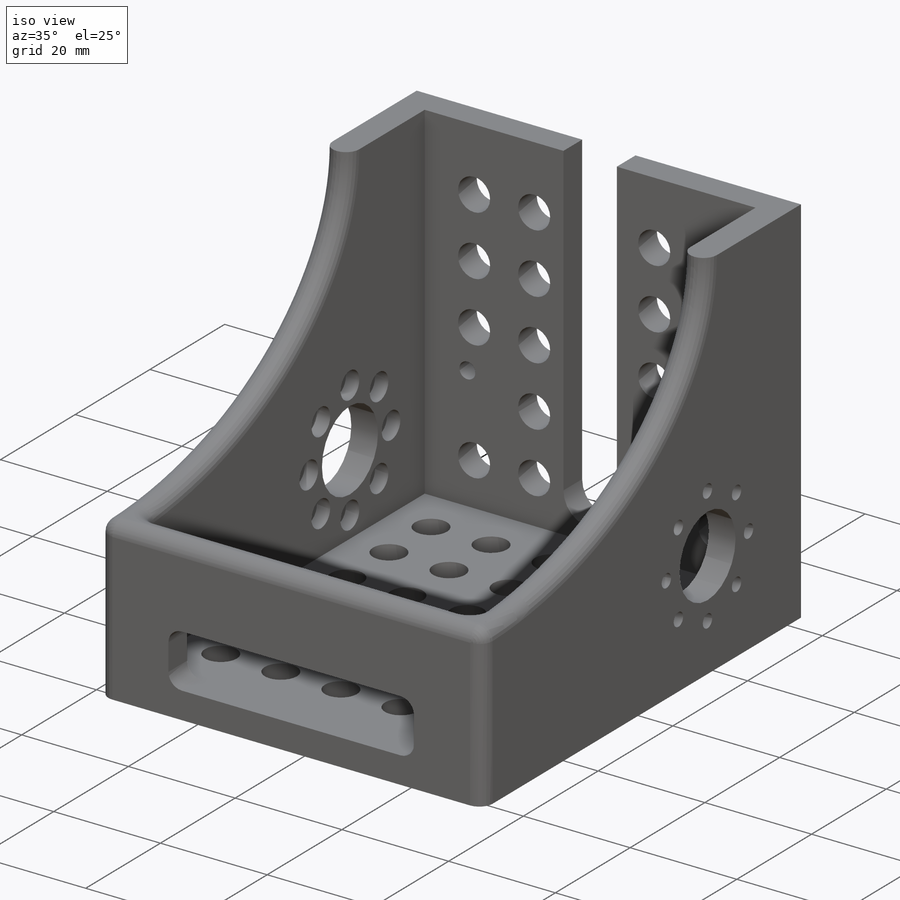
[diagram: iso view]
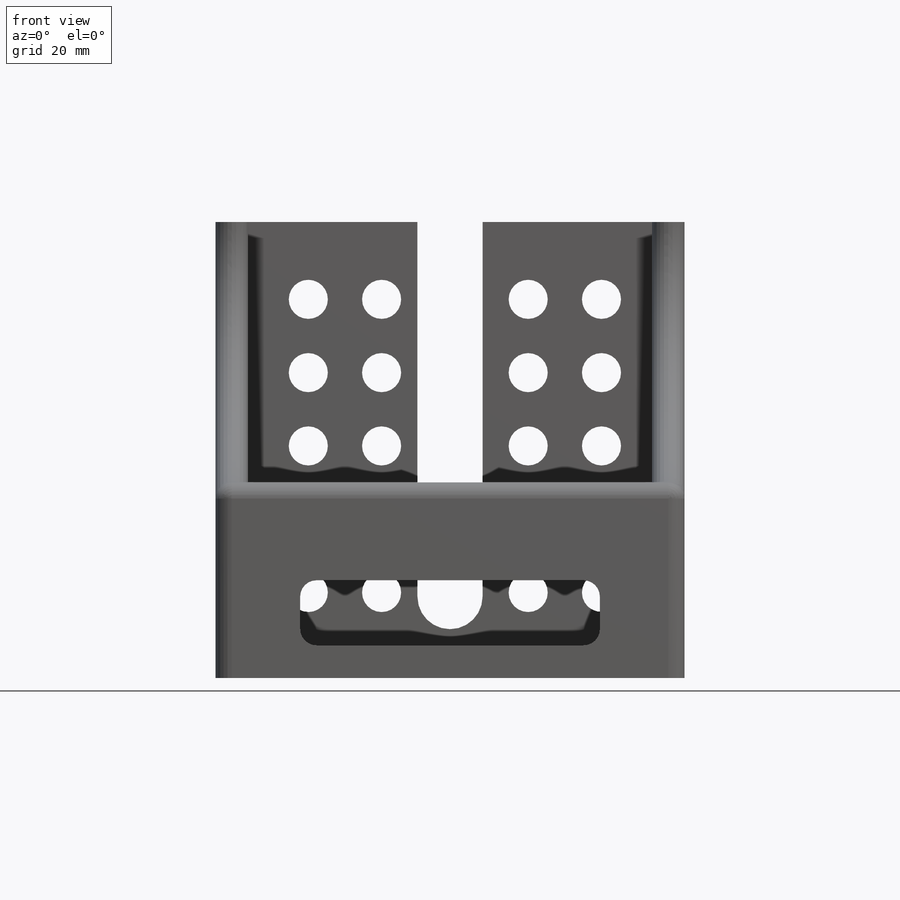
[diagram: front view]
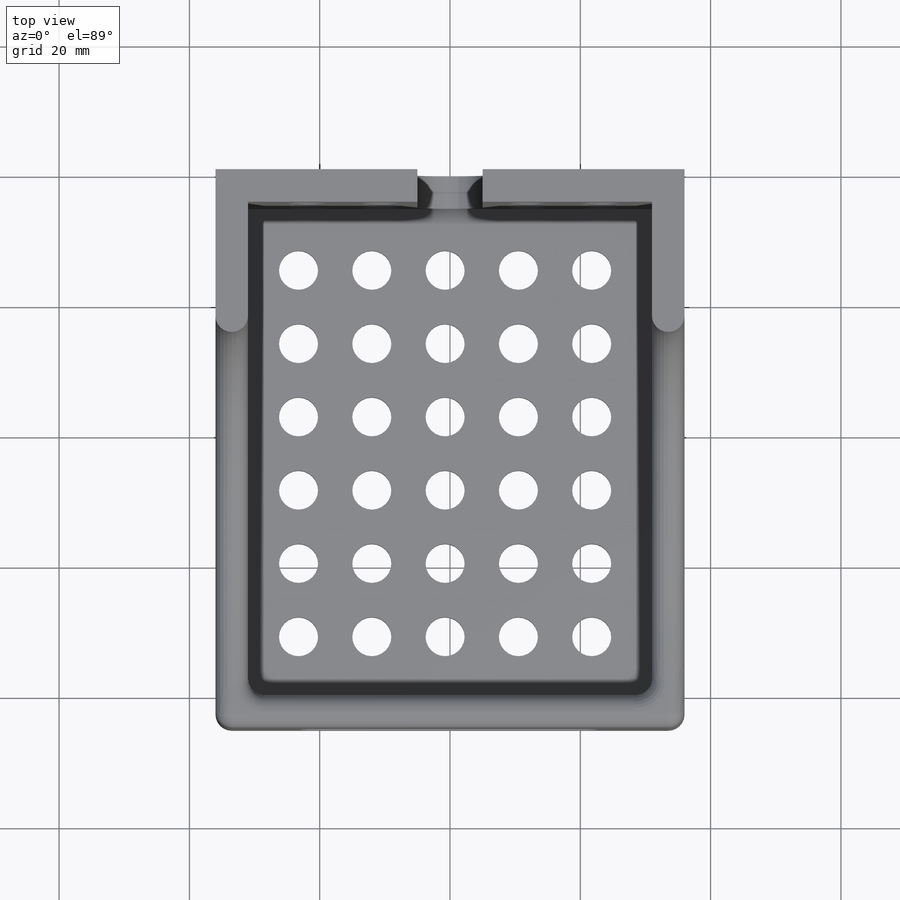
[diagram: top view]
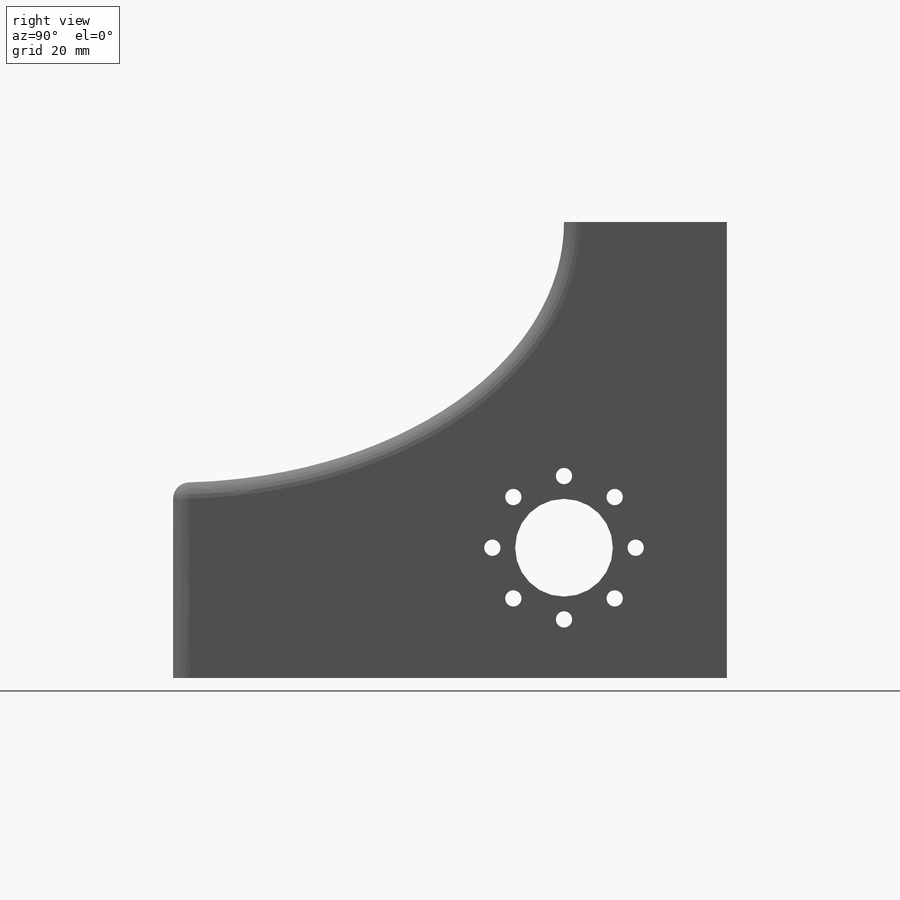
[diagram: right view]
SOLIDWORKS PART (.sldprt)
format: sldprt  version: not decoded by parser v0  size: 564,736 bytes
history: native  units: mm
features: sketch x8, cut_extrude x7, fillet x2, pattern_linear x2, material x1, extrude x1, shell x1, mirror x1 (+12 scaffold rows collapsed)
feature tree (35):
  scaffold x12  (default folders/planes/origin — collapsed)
  material  "Material <not specified>"
  sketch  "Sketch1"  dims[c1.D1=~42.798216mm c1.D2=~55.715496mm c2.D1=70.0mm c2.D2=72.0mm]
  extrude  "Boss-Extrude1"  Depth=85mm
  shell  "Shell1"  Thickness=5mm
  sketch  "Sketch3"  dims[D1=60.0mm D2=40.0mm]
  cut_extrude  "Cut-Extrude2"  [1 undecoded]
  sketch  "Sketch4"  dims[c1.D1=~6.967103mm c1.D4=3.0mm c1.D2=5.0mm c2.D1=46.0mm c2.D2=7.0mm c2.D3=23.0mm c2.D5=7.5mm]
  cut_extrude  "Cut-Extrude3"  [1 undecoded]
  sketch  "Sketch5"  dims[c1.D1=~10.273321mm c1.D2=~47.653001mm c2.D1=10.0mm]
  cut_extrude  "Cut-Extrude4"  [1 undecoded]
  fillet  "Fillet1"  Radius=2.5mm
  sketch  "Sketch6"  dims[c1.D1=~2.526476mm c1.D2=2.5mm c1.D3=15.0mm c2.D1=11.0mm c2.D4=60.0mm c2.D5=15.0mm c2.D7=45.0deg c2.D8=11.0mm c2.D6=8.0]
  cut_extrude  "Cut-Extrude5"  [1 undecoded]
  sketch  "Sketch8"  dims[D1=5.0mm D3=11.0mm D2=8.0]
  cut_extrude  "Cut-Extrude6"  Depth=2.5mm
  mirror  "Mirror1"
  fillet  "Fillet2"  Radius=2.5mm
  sketch  "Sketch9"  dims[D1=~5.881454mm]
  cut_extrude  "Cut-Extrude7"  [1 undecoded]
  pattern_linear  "LPattern1"  Count1=5 Count2=6 Spacing1=11.25mm Spacing2=11.25mm
  sketch  "Sketch10"  dims[D1=~14.780574mm]
  cut_extrude  "Cut-Extrude8"  [1 undecoded]
  pattern_linear  "LPattern2"  Count1=5 Count2=5 Spacing1=11.25mm Spacing2=11.25mm
decode coverage: 15 of 22 modeling features carry decoded parameters
note: ~ marks probable driven/reference dimensions
note: 6 parameter values undecoded
summary: no parameter record found for 6 features
note: suppression state not decoded; provenance and decode notes live in map.json
